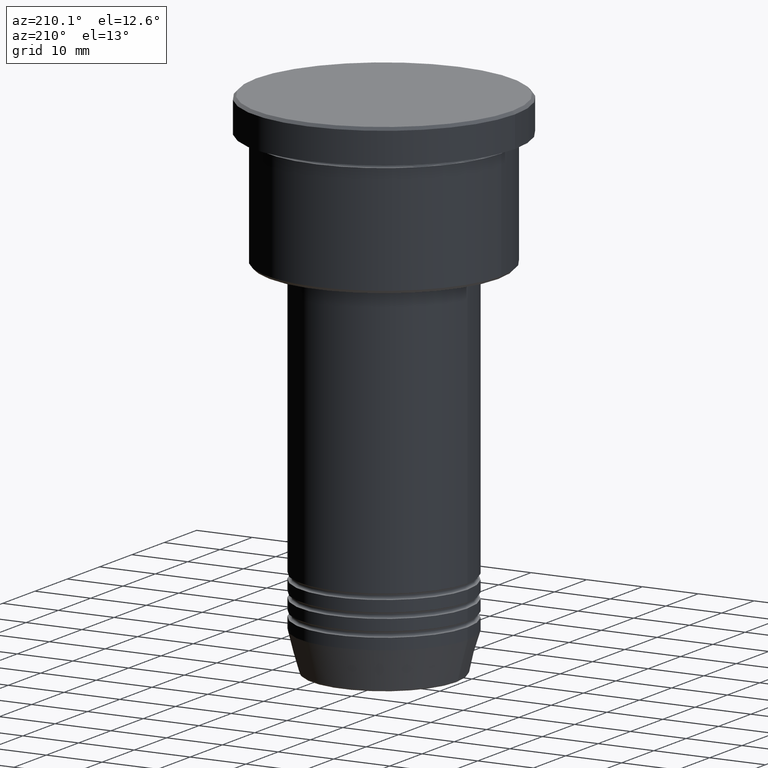
[diagram: clean part render]
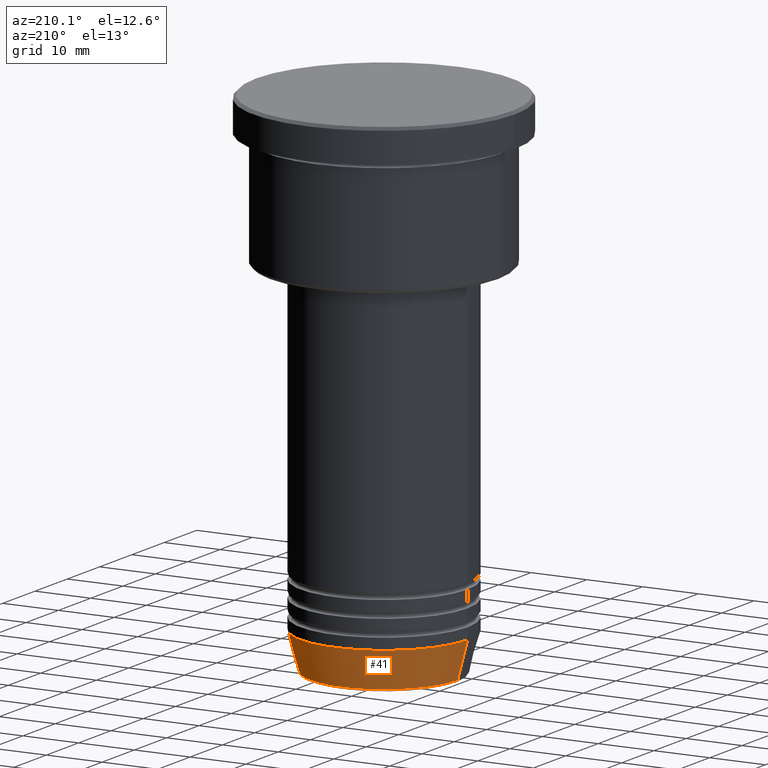
[diagram: same view with one face highlighted and labeled with its STEP entity id]
A machine part, auxiliary view. The second image highlights one B-rep face of the part: STEP entity #41.
In plain terms, the highlighted conical surface has half-angle 15 deg.
Its self-contained STEP definition (entity closure, byte-faithful):
#41 = ADVANCED_FACE ( 'NONE', ( #364 ), #458, .T. ) ;
#82 = DIRECTION ( 'NONE',  ( -0.000000000000000000, -0.000000000000000000, 1.000000000000000000 ) ) ;
#102 = CARTESIAN_POINT ( 'NONE',  ( 0.000000000000000000, 0.000000000000000000, -84.99999999999998579 ) ) ;
#107 = ORIENTED_EDGE ( 'NONE', *, *, #293, .T. ) ;
#119 = AXIS2_PLACEMENT_3D ( 'NONE', #235, #616, #878 ) ;
#131 = VERTEX_POINT ( 'NONE', #207 ) ;
#207 = CARTESIAN_POINT ( 'NONE',  ( -15.00000000000000000, 1.836970198721029589E-15, -84.99999999999998579 ) ) ;
#235 = CARTESIAN_POINT ( 'NONE',  ( 0.000000000000000000, 0.000000000000000000, -91.62940952255124216 ) ) ;
#293 = EDGE_CURVE ( 'NONE', #893, #131, #473, .T. ) ;
#295 = ORIENTED_EDGE ( 'NONE', *, *, #577, .T. ) ;
#344 = EDGE_CURVE ( 'NONE', #1167, #131, #1172, .T. ) ;
#351 = DIRECTION ( 'NONE',  ( 1.000000000000000000, 0.000000000000000000, 0.000000000000000000 ) ) ;
#357 = DIRECTION ( 'NONE',  ( 1.000000000000000000, 0.000000000000000000, 0.000000000000000000 ) ) ;
#364 = FACE_OUTER_BOUND ( 'NONE', #1028, .T. ) ;
#368 = CARTESIAN_POINT ( 'NONE',  ( 13.22365507213718594, 0.000000000000000000, -91.62940952255124216 ) ) ;
#443 = CARTESIAN_POINT ( 'NONE',  ( 15.00000000000000000, 0.000000000000000000, -84.99999999999998579 ) ) ;
#451 = CARTESIAN_POINT ( 'NONE',  ( 0.000000000000000000, 0.000000000000000000, -84.99999999999998579 ) ) ;
#458 = CONICAL_SURFACE ( 'NONE', #856, 15.00000000000000000, 0.2617993877991500740 ) ;
#466 = EDGE_CURVE ( 'NONE', #699, #1167, #544, .T. ) ;
#473 = LINE ( 'NONE', #752, #837 ) ;
#544 = LINE ( 'NONE', #722, #693 ) ;
#577 = EDGE_CURVE ( 'NONE', #699, #893, #926, .T. ) ;
#616 = DIRECTION ( 'NONE',  ( -0.000000000000000000, -0.000000000000000000, 1.000000000000000000 ) ) ;
#645 = DIRECTION ( 'NONE',  ( 0.2588190451025213501, 0.000000000000000000, 0.9659258262890680902 ) ) ;
#693 = VECTOR ( 'NONE', #645, 1000.000000000000000 ) ;
#699 = VERTEX_POINT ( 'NONE', #368 ) ;
#722 = CARTESIAN_POINT ( 'NONE',  ( 15.00000000000000000, 0.000000000000000000, -84.99999999999998579 ) ) ;
#752 = CARTESIAN_POINT ( 'NONE',  ( -15.00000000000000000, 1.836970198721029589E-15, -84.99999999999998579 ) ) ;
#837 = VECTOR ( 'NONE', #1121, 1000.000000000000000 ) ;
#856 = AXIS2_PLACEMENT_3D ( 'NONE', #451, #82, #351 ) ;
#878 = DIRECTION ( 'NONE',  ( 1.000000000000000000, 0.000000000000000000, 0.000000000000000000 ) ) ;
#893 = VERTEX_POINT ( 'NONE', #1093 ) ;
#926 = CIRCLE ( 'NONE', #119, 13.22365507213718594 ) ;
#939 = AXIS2_PLACEMENT_3D ( 'NONE', #102, #1181, #357 ) ;
#974 = ORIENTED_EDGE ( 'NONE', *, *, #466, .F. ) ;
#1028 = EDGE_LOOP ( 'NONE', ( #295, #107, #1158, #974 ) ) ;
#1093 = CARTESIAN_POINT ( 'NONE',  ( -13.22365507213718594, 1.728200442216587992E-15, -91.62940952255124216 ) ) ;
#1121 = DIRECTION ( 'NONE',  ( -0.2588190451025213501, 3.169619151431772337E-17, 0.9659258262890680902 ) ) ;
#1158 = ORIENTED_EDGE ( 'NONE', *, *, #344, .F. ) ;
#1167 = VERTEX_POINT ( 'NONE', #443 ) ;
#1172 = CIRCLE ( 'NONE', #939, 15.00000000000000000 ) ;
#1181 = DIRECTION ( 'NONE',  ( -0.000000000000000000, -0.000000000000000000, 1.000000000000000000 ) ) ;